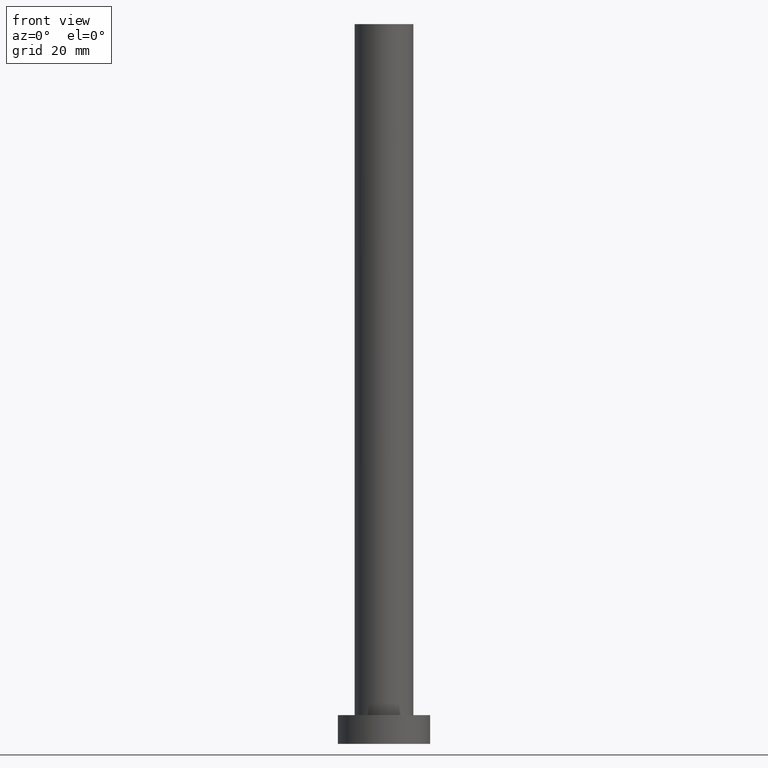
[diagram: clean part render]
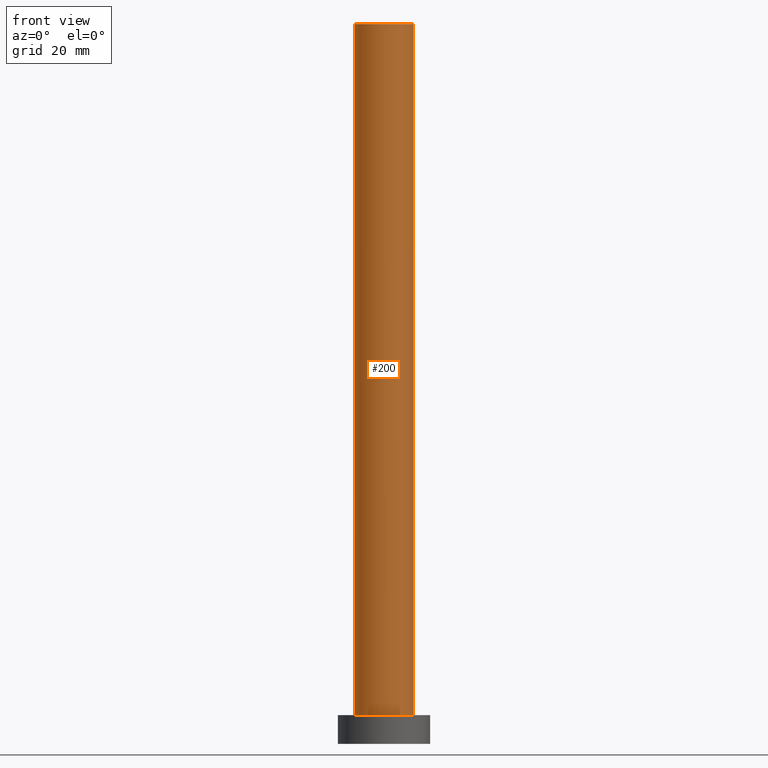
[diagram: same view with one face highlighted and labeled with its STEP entity id]
A machine part, front view. The second image highlights one B-rep face of the part: STEP entity #200.
In plain terms, the highlighted cylindrical surface (edge-blend (fillet) strip) has radius 5.1 mm, axis along (-0, -0, -1).
Its self-contained STEP definition (entity closure, byte-faithful):
#1 = LINE ( 'NONE', #50, #9 ) ;
#2 = DIRECTION ( 'NONE',  ( 1.000000000000000000, 0.000000000000000000, 0.000000000000000000 ) ) ;
#9 = VECTOR ( 'NONE', #140, 1000.000000000000000 ) ;
#13 = VERTEX_POINT ( 'NONE', #98 ) ;
#15 = DIRECTION ( 'NONE',  ( -0.000000000000000000, -0.000000000000000000, -1.000000000000000000 ) ) ;
#29 = LINE ( 'NONE', #226, #197 ) ;
#37 = EDGE_LOOP ( 'NONE', ( #61, #233, #132, #130 ) ) ;
#41 = CARTESIAN_POINT ( 'NONE',  ( -5.100000000000001421, 0.000000000000000000, 125.0000000000000000 ) ) ;
#44 = CARTESIAN_POINT ( 'NONE',  ( -5.100000000000001421, 0.000000000000000000, 5.000000000000000000 ) ) ;
#50 = CARTESIAN_POINT ( 'NONE',  ( 5.100000000000001421, 6.245698675651502811E-16, 125.0000000000000000 ) ) ;
#60 = EDGE_CURVE ( 'NONE', #107, #207, #29, .T. ) ;
#61 = ORIENTED_EDGE ( 'NONE', *, *, #177, .F. ) ;
#69 = DIRECTION ( 'NONE',  ( -1.000000000000000000, 0.000000000000000000, 0.000000000000000000 ) ) ;
#70 = CARTESIAN_POINT ( 'NONE',  ( 0.000000000000000000, 0.000000000000000000, 125.0000000000000000 ) ) ;
#72 = AXIS2_PLACEMENT_3D ( 'NONE', #70, #160, #2 ) ;
#92 = DIRECTION ( 'NONE',  ( 1.000000000000000000, 0.000000000000000000, 0.000000000000000000 ) ) ;
#98 = CARTESIAN_POINT ( 'NONE',  ( 5.100000000000001421, 6.245698675651502811E-16, 125.0000000000000000 ) ) ;
#107 = VERTEX_POINT ( 'NONE', #41 ) ;
#118 = AXIS2_PLACEMENT_3D ( 'NONE', #165, #139, #69 ) ;
#120 = DIRECTION ( 'NONE',  ( 0.000000000000000000, 0.000000000000000000, 1.000000000000000000 ) ) ;
#122 = EDGE_CURVE ( 'NONE', #207, #183, #185, .T. ) ;
#130 = ORIENTED_EDGE ( 'NONE', *, *, #122, .T. ) ;
#132 = ORIENTED_EDGE ( 'NONE', *, *, #60, .T. ) ;
#139 = DIRECTION ( 'NONE',  ( -0.000000000000000000, -0.000000000000000000, -1.000000000000000000 ) ) ;
#140 = DIRECTION ( 'NONE',  ( -0.000000000000000000, -0.000000000000000000, -1.000000000000000000 ) ) ;
#141 = CYLINDRICAL_SURFACE ( 'NONE', #118, 5.100000000000001421 ) ;
#154 = EDGE_CURVE ( 'NONE', #107, #13, #255, .T. ) ;
#160 = DIRECTION ( 'NONE',  ( 0.000000000000000000, 0.000000000000000000, 1.000000000000000000 ) ) ;
#165 = CARTESIAN_POINT ( 'NONE',  ( 0.000000000000000000, 0.000000000000000000, 125.0000000000000000 ) ) ;
#177 = EDGE_CURVE ( 'NONE', #13, #183, #1, .T. ) ;
#183 = VERTEX_POINT ( 'NONE', #219 ) ;
#185 = CIRCLE ( 'NONE', #223, 5.100000000000001421 ) ;
#197 = VECTOR ( 'NONE', #15, 1000.000000000000000 ) ;
#198 = FACE_OUTER_BOUND ( 'NONE', #37, .T. ) ;
#200 = ADVANCED_FACE ( 'NONE', ( #198 ), #141, .T. ) ;
#207 = VERTEX_POINT ( 'NONE', #44 ) ;
#219 = CARTESIAN_POINT ( 'NONE',  ( 5.100000000000001421, 6.245698675651502811E-16, 5.000000000000000000 ) ) ;
#223 = AXIS2_PLACEMENT_3D ( 'NONE', #238, #120, #92 ) ;
#226 = CARTESIAN_POINT ( 'NONE',  ( -5.100000000000001421, 0.000000000000000000, 125.0000000000000000 ) ) ;
#233 = ORIENTED_EDGE ( 'NONE', *, *, #154, .F. ) ;
#238 = CARTESIAN_POINT ( 'NONE',  ( 0.000000000000000000, 0.000000000000000000, 5.000000000000000000 ) ) ;
#255 = CIRCLE ( 'NONE', #72, 5.100000000000001421 ) ;